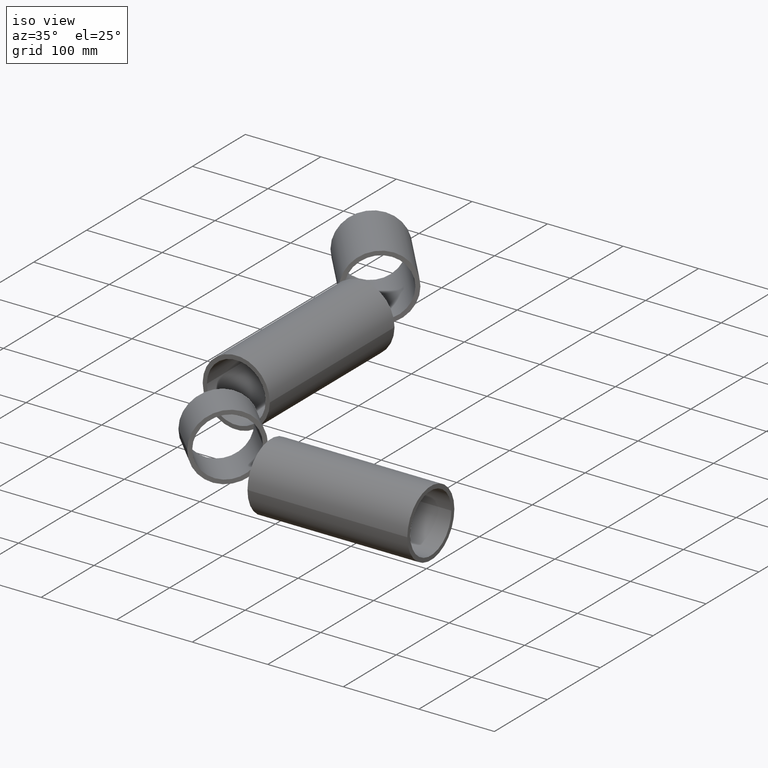
[diagram: clean part render]
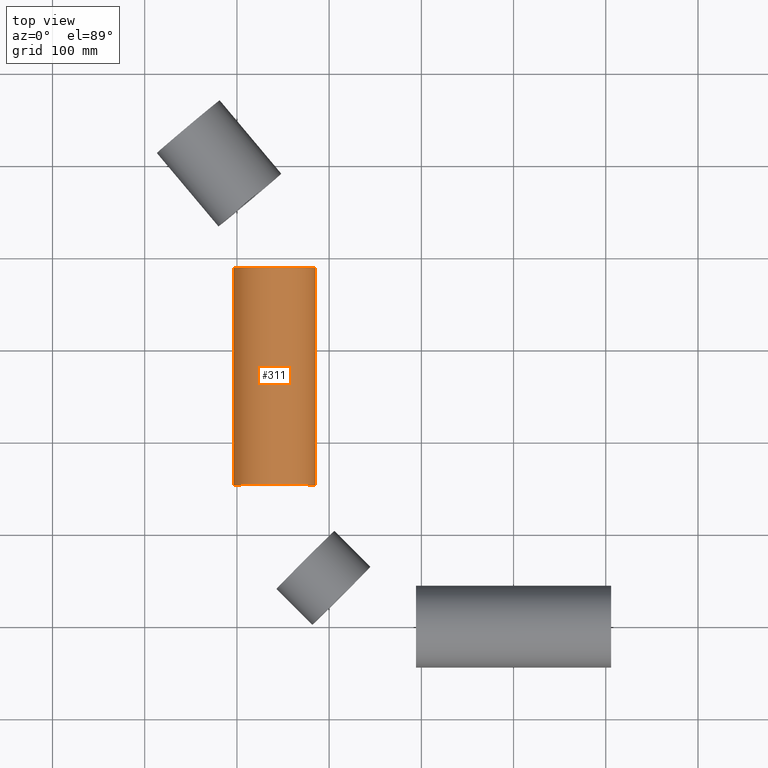
[diagram: tour spotlight — one face highlighted and labeled with its STEP entity id]
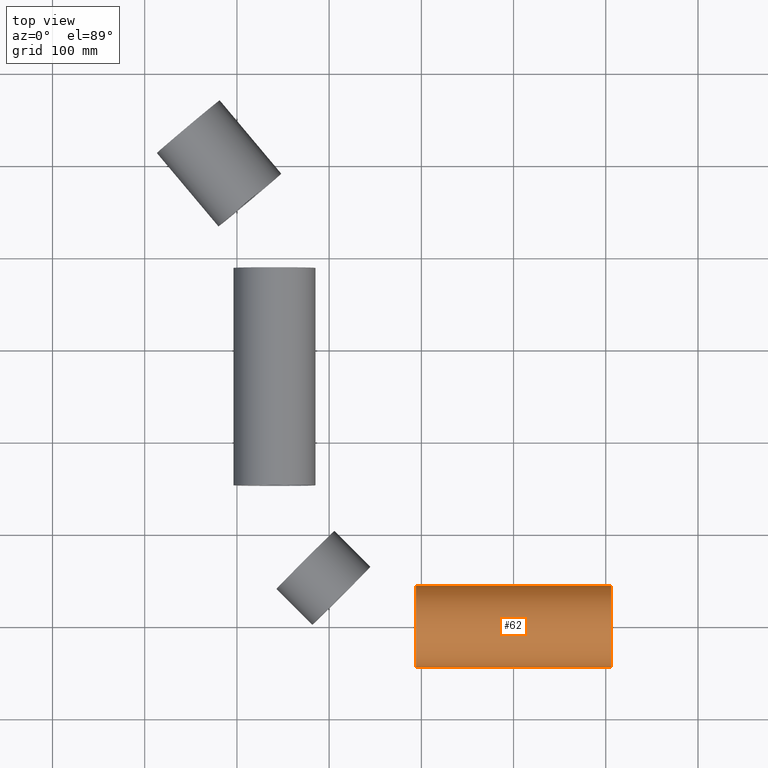
[diagram: tour spotlight — one face highlighted and labeled with its STEP entity id]
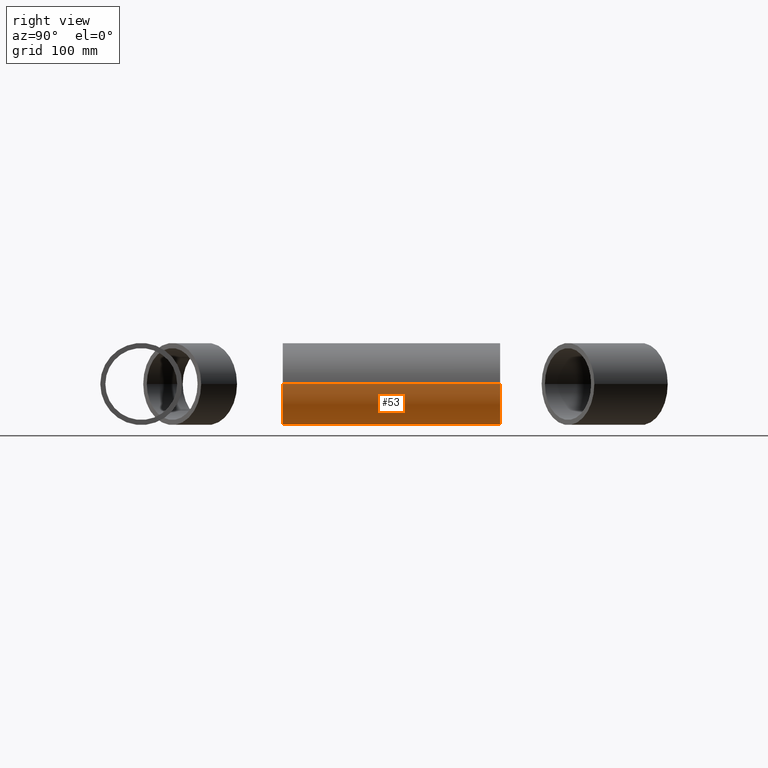
[diagram: tour spotlight — one face highlighted and labeled with its STEP entity id]
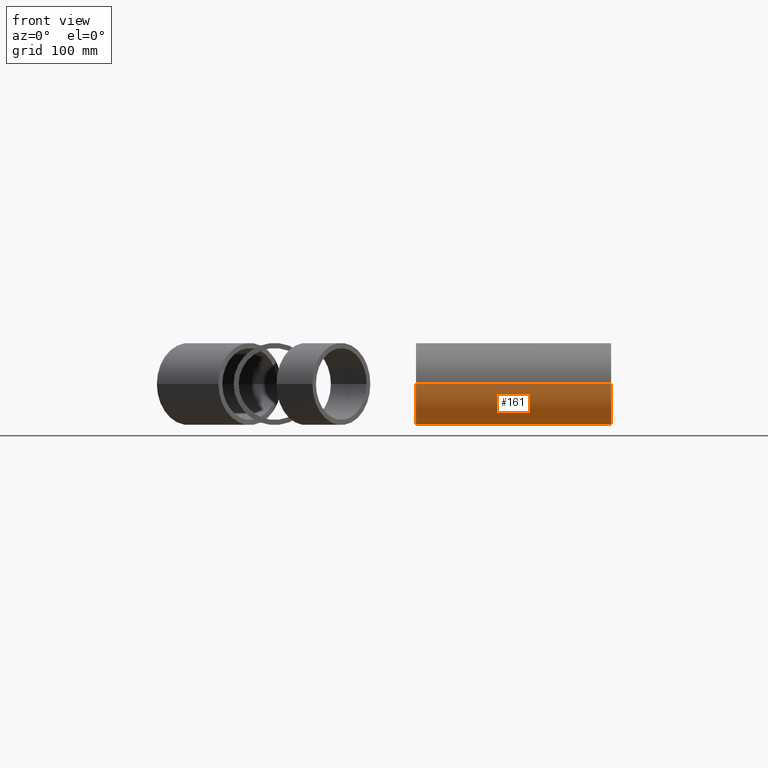
[diagram: tour spotlight — one face highlighted and labeled with its STEP entity id]
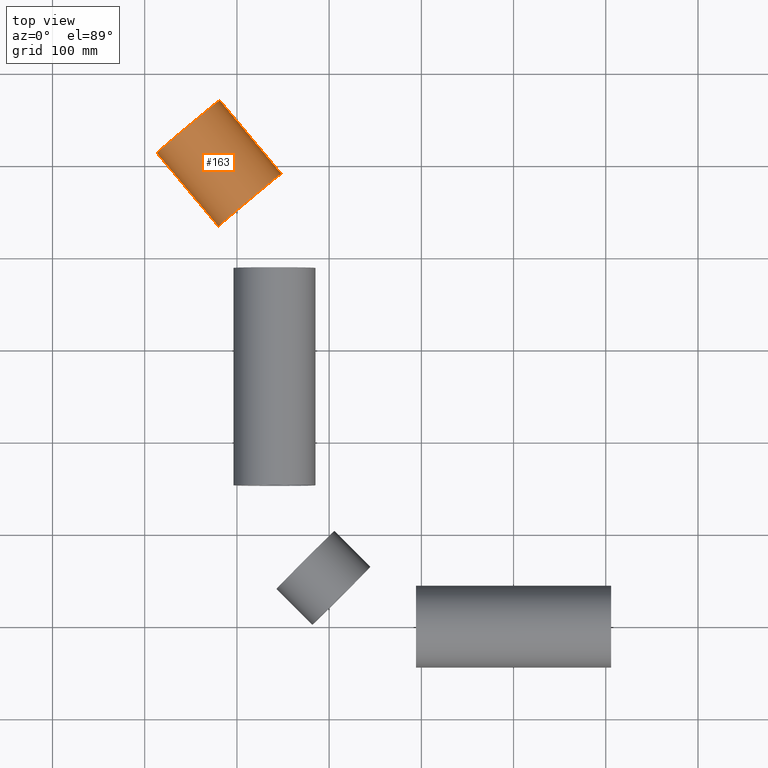
[diagram: tour spotlight — one face highlighted and labeled with its STEP entity id]
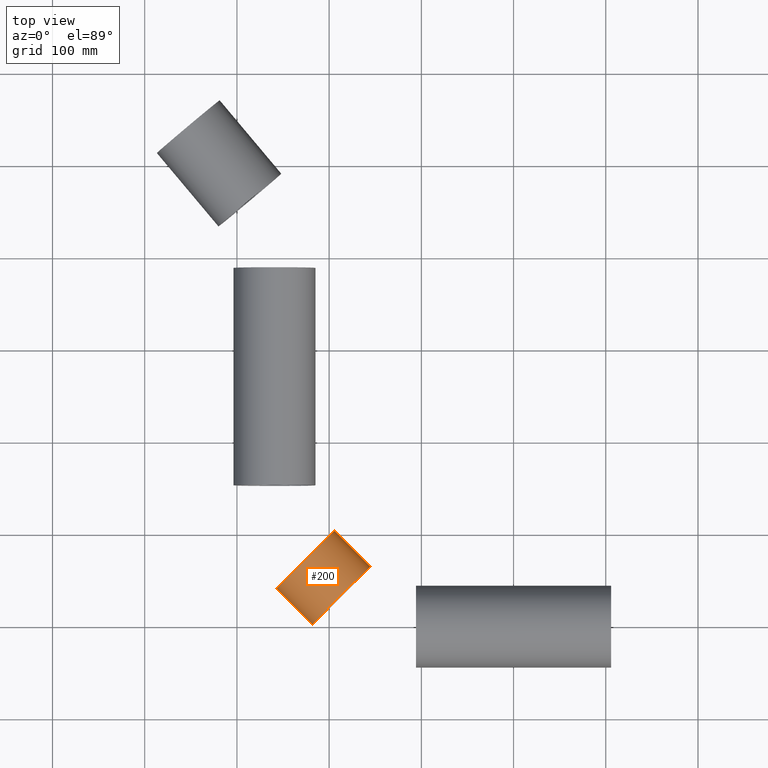
[diagram: tour spotlight — one face highlighted and labeled with its STEP entity id]
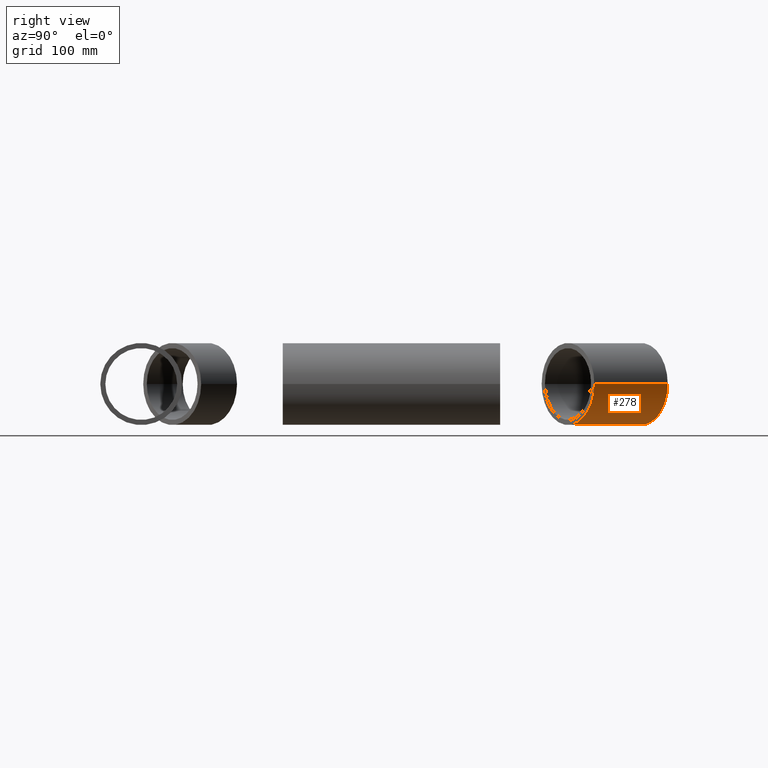
[diagram: tour spotlight — one face highlighted and labeled with its STEP entity id]
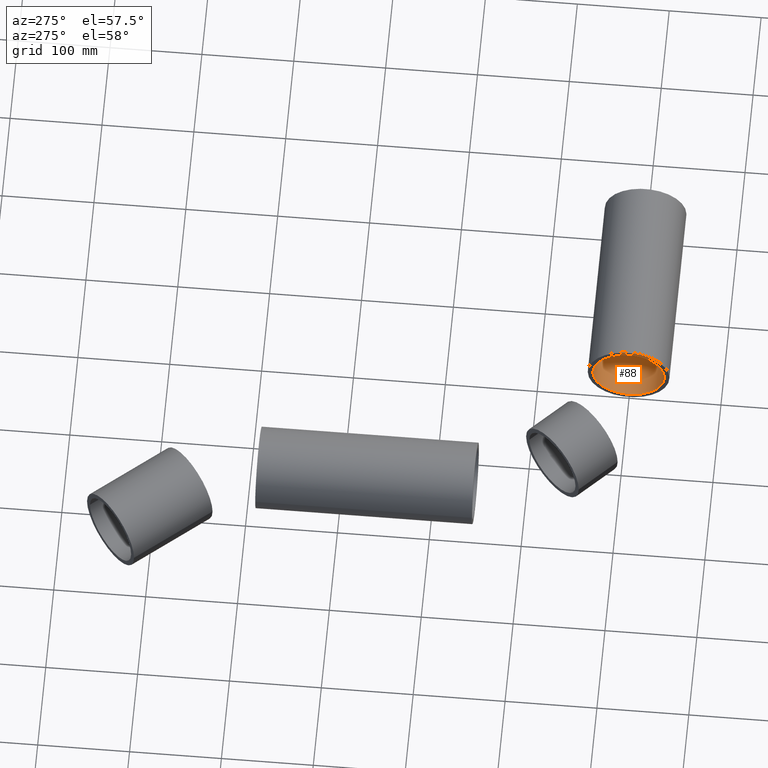
[diagram: tour spotlight — one face highlighted and labeled with its STEP entity id]
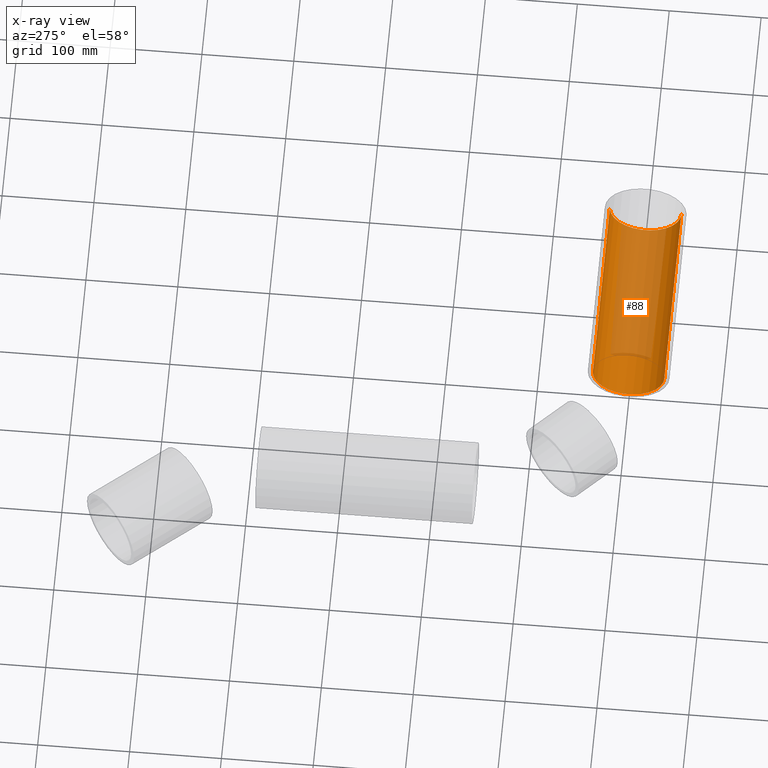
[diagram: x-ray of the same camera — body ghosted, this tour face saturated]
A machine part: a face-by-face anatomy tour. The part has 24 B-rep faces; the first image is the clean iso view, then the 8 largest visible faces are spotlighted one at a time (largest first), each with its STEP entity span.

Face 1 — top view, entity #311. In plain terms, the highlighted cylindrical surface (partial cylindrical patch) has radius 44.45 mm, axis along (-0, -1, -0).
Definition (entity closure, byte-faithful):
#37 = DIRECTION ( 'NONE',  ( -2.354570124668123057E-16, -1.000000000000000000, -0.000000000000000000 ) ) ;
#54 = VERTEX_POINT ( 'NONE', #654 ) ;
#63 = DIRECTION ( 'NONE',  ( -2.354570124668123057E-16, -1.000000000000000000, -0.000000000000000000 ) ) ;
#84 = LINE ( 'NONE', #538, #140 ) ;
#116 = EDGE_CURVE ( 'NONE', #54, #383, #84, .T. ) ;
#117 = CARTESIAN_POINT ( 'NONE',  ( -259.1954364826297024, 389.1500489170994115, 0.000000000000000000 ) ) ;
#124 = DIRECTION ( 'NONE',  ( 2.220446049250312588E-16, 1.000000000000000000, 0.000000000000000000 ) ) ;
#126 = EDGE_CURVE ( 'NONE', #383, #358, #327, .T. ) ;
#140 = VECTOR ( 'NONE', #37, 1000.000000000000000 ) ;
#192 = DIRECTION ( 'NONE',  ( -1.000000000000000000, 0.000000000000000000, 0.000000000000000000 ) ) ;
#202 = CARTESIAN_POINT ( 'NONE',  ( -214.7454364826296853, 389.1500489170994115, 0.000000000000000000 ) ) ;
#207 = DIRECTION ( 'NONE',  ( -2.354570124668123057E-16, -1.000000000000000000, -0.000000000000000000 ) ) ;
#268 = DIRECTION ( 'NONE',  ( -1.000000000000000000, 0.000000000000000000, 0.000000000000000000 ) ) ;
#291 = DIRECTION ( 'NONE',  ( 1.000000000000000000, 0.000000000000000000, 0.000000000000000000 ) ) ;
#311 = ADVANCED_FACE ( 'NONE', ( #353 ), #468, .T. ) ;
#316 = CARTESIAN_POINT ( 'NONE',  ( -259.1954364826297592, 153.3908729652592058, 0.000000000000000000 ) ) ;
#317 = LINE ( 'NONE', #640, #506 ) ;
#327 = CIRCLE ( 'NONE', #423, 44.45000000000004547 ) ;
#348 = EDGE_CURVE ( 'NONE', #395, #358, #317, .T. ) ;
#353 = FACE_OUTER_BOUND ( 'NONE', #514, .T. ) ;
#358 = VERTEX_POINT ( 'NONE', #366 ) ;
#366 = CARTESIAN_POINT ( 'NONE',  ( -214.7454364826297422, 153.3908729652592058, 0.000000000000000000 ) ) ;
#383 = VERTEX_POINT ( 'NONE', #530 ) ;
#395 = VERTEX_POINT ( 'NONE', #202 ) ;
#423 = AXIS2_PLACEMENT_3D ( 'NONE', #316, #541, #268 ) ;
#468 = CYLINDRICAL_SURFACE ( 'NONE', #519, 44.45000000000001705 ) ;
#506 = VECTOR ( 'NONE', #207, 1000.000000000000000 ) ;
#514 = EDGE_LOOP ( 'NONE', ( #622, #735, #625, #674 ) ) ;
#519 = AXIS2_PLACEMENT_3D ( 'NONE', #117, #63, #291 ) ;
#530 = CARTESIAN_POINT ( 'NONE',  ( -303.6454364826297478, 153.3908729652592058, 5.443555022209990431E-15 ) ) ;
#538 = CARTESIAN_POINT ( 'NONE',  ( -303.6454364826297478, 389.1500489170994115, 5.443555022209986486E-15 ) ) ;
#541 = DIRECTION ( 'NONE',  ( 2.220446049250312588E-16, 1.000000000000000000, 0.000000000000000000 ) ) ;
#590 = AXIS2_PLACEMENT_3D ( 'NONE', #641, #124, #192 ) ;
#612 = CIRCLE ( 'NONE', #590, 44.45000000000004547 ) ;
#622 = ORIENTED_EDGE ( 'NONE', *, *, #652, .F. ) ;
#625 = ORIENTED_EDGE ( 'NONE', *, *, #126, .T. ) ;
#640 = CARTESIAN_POINT ( 'NONE',  ( -214.7454364826296853, 389.1500489170994115, 0.000000000000000000 ) ) ;
#641 = CARTESIAN_POINT ( 'NONE',  ( -259.1954364826297024, 389.1500489170994115, 0.000000000000000000 ) ) ;
#652 = EDGE_CURVE ( 'NONE', #54, #395, #612, .T. ) ;
#654 = CARTESIAN_POINT ( 'NONE',  ( -303.6454364826297478, 389.1500489170994115, 5.443555022209982542E-15 ) ) ;
#674 = ORIENTED_EDGE ( 'NONE', *, *, #348, .F. ) ;
#735 = ORIENTED_EDGE ( 'NONE', *, *, #116, .T. ) ;

Face 2 — top view, entity #62. In plain terms, the highlighted cylindrical surface (partial cylindrical patch) has radius 44.45 mm, axis along (1, 0, -0).
Definition (entity closure, byte-faithful):
#9 = EDGE_CURVE ( 'NONE', #110, #227, #411, .T. ) ;
#42 = DIRECTION ( 'NONE',  ( 1.000000000000000000, 1.224646799147352961E-16, -0.000000000000000000 ) ) ;
#50 = DIRECTION ( 'NONE',  ( -1.000000000000000000, -1.110223024625156294E-16, 0.000000000000000000 ) ) ;
#62 = ADVANCED_FACE ( 'NONE', ( #420 ), #704, .T. ) ;
#69 = VECTOR ( 'NONE', #151, 1000.000000000000000 ) ;
#76 = CARTESIAN_POINT ( 'NONE',  ( -105.8045635173704966, -44.45000000000003126, 5.443555022209987275E-15 ) ) ;
#91 = CARTESIAN_POINT ( 'NONE',  ( -105.8045635173704966, -1.203685620153159673E-14, 0.000000000000000000 ) ) ;
#109 = EDGE_CURVE ( 'NONE', #286, #606, #587, .T. ) ;
#110 = VERTEX_POINT ( 'NONE', #650 ) ;
#125 = ORIENTED_EDGE ( 'NONE', *, *, #109, .F. ) ;
#146 = DIRECTION ( 'NONE',  ( 1.000000000000000000, 1.224646799147352961E-16, -0.000000000000000000 ) ) ;
#151 = DIRECTION ( 'NONE',  ( 1.000000000000000000, 1.224646799147352961E-16, -0.000000000000000000 ) ) ;
#154 = AXIS2_PLACEMENT_3D ( 'NONE', #614, #50, #608 ) ;
#164 = AXIS2_PLACEMENT_3D ( 'NONE', #91, #146, #486 ) ;
#216 = ORIENTED_EDGE ( 'NONE', *, *, #440, .F. ) ;
#227 = VERTEX_POINT ( 'NONE', #664 ) ;
#286 = VERTEX_POINT ( 'NONE', #457 ) ;
#379 = CARTESIAN_POINT ( 'NONE',  ( -105.8045635173704966, -1.203685620153159673E-14, 0.000000000000000000 ) ) ;
#396 = EDGE_LOOP ( 'NONE', ( #216, #510, #660, #125 ) ) ;
#411 = LINE ( 'NONE', #76, #69 ) ;
#420 = FACE_OUTER_BOUND ( 'NONE', #396, .T. ) ;
#440 = EDGE_CURVE ( 'NONE', #110, #286, #472, .T. ) ;
#450 = CIRCLE ( 'NONE', #154, 44.45000000000002416 ) ;
#451 = EDGE_CURVE ( 'NONE', #227, #606, #450, .T. ) ;
#457 = CARTESIAN_POINT ( 'NONE',  ( -105.8045635173704966, 44.45000000000000284, 0.000000000000000000 ) ) ;
#472 = CIRCLE ( 'NONE', #598, 44.45000000000002416 ) ;
#486 = DIRECTION ( 'NONE',  ( 0.000000000000000000, 1.000000000000000000, 0.000000000000000000 ) ) ;
#496 = VECTOR ( 'NONE', #42, 1000.000000000000000 ) ;
#510 = ORIENTED_EDGE ( 'NONE', *, *, #9, .T. ) ;
#513 = DIRECTION ( 'NONE',  ( 0.000000000000000000, -1.000000000000000000, 0.000000000000000000 ) ) ;
#523 = CARTESIAN_POINT ( 'NONE',  ( 105.8045635173699992, 44.45000000000002416, 0.000000000000000000 ) ) ;
#546 = CARTESIAN_POINT ( 'NONE',  ( -105.8045635173704966, 44.45000000000000284, 0.000000000000000000 ) ) ;
#587 = LINE ( 'NONE', #546, #496 ) ;
#598 = AXIS2_PLACEMENT_3D ( 'NONE', #379, #679, #513 ) ;
#606 = VERTEX_POINT ( 'NONE', #523 ) ;
#608 = DIRECTION ( 'NONE',  ( 0.000000000000000000, -1.000000000000000000, 0.000000000000000000 ) ) ;
#614 = CARTESIAN_POINT ( 'NONE',  ( 105.8045635173699992, 1.387778780781445676E-14, 0.000000000000000000 ) ) ;
#650 = CARTESIAN_POINT ( 'NONE',  ( -105.8045635173704966, -44.45000000000002416, 5.443555022209988853E-15 ) ) ;
#660 = ORIENTED_EDGE ( 'NONE', *, *, #451, .T. ) ;
#664 = CARTESIAN_POINT ( 'NONE',  ( 105.8045635173699992, -44.45000000000000284, 5.443555022209987275E-15 ) ) ;
#679 = DIRECTION ( 'NONE',  ( -1.000000000000000000, -1.110223024625156294E-16, 0.000000000000000000 ) ) ;
#704 = CYLINDRICAL_SURFACE ( 'NONE', #164, 44.45000000000001705 ) ;

Face 3 — right view, entity #53. In plain terms, the highlighted cylindrical surface (partial cylindrical patch) has radius 44.45 mm, axis along (-0, -1, -0).
Definition (entity closure, byte-faithful):
#6 = DIRECTION ( 'NONE',  ( -1.000000000000000000, 0.000000000000000000, 0.000000000000000000 ) ) ;
#12 = CIRCLE ( 'NONE', #93, 44.45000000000004547 ) ;
#37 = DIRECTION ( 'NONE',  ( -2.354570124668123057E-16, -1.000000000000000000, -0.000000000000000000 ) ) ;
#53 = ADVANCED_FACE ( 'NONE', ( #305 ), #252, .T. ) ;
#54 = VERTEX_POINT ( 'NONE', #654 ) ;
#61 = ORIENTED_EDGE ( 'NONE', *, *, #348, .T. ) ;
#66 = ORIENTED_EDGE ( 'NONE', *, *, #314, .F. ) ;
#75 = CARTESIAN_POINT ( 'NONE',  ( -259.1954364826297592, 153.3908729652592058, 0.000000000000000000 ) ) ;
#84 = LINE ( 'NONE', #538, #140 ) ;
#93 = AXIS2_PLACEMENT_3D ( 'NONE', #694, #515, #6 ) ;
#116 = EDGE_CURVE ( 'NONE', #54, #383, #84, .T. ) ;
#136 = DIRECTION ( 'NONE',  ( -2.354570124668123057E-16, -1.000000000000000000, -0.000000000000000000 ) ) ;
#140 = VECTOR ( 'NONE', #37, 1000.000000000000000 ) ;
#160 = ORIENTED_EDGE ( 'NONE', *, *, #712, .T. ) ;
#187 = DIRECTION ( 'NONE',  ( 2.220446049250312588E-16, 1.000000000000000000, 0.000000000000000000 ) ) ;
#202 = CARTESIAN_POINT ( 'NONE',  ( -214.7454364826296853, 389.1500489170994115, 0.000000000000000000 ) ) ;
#206 = DIRECTION ( 'NONE',  ( 1.000000000000000000, 0.000000000000000000, 0.000000000000000000 ) ) ;
#207 = DIRECTION ( 'NONE',  ( -2.354570124668123057E-16, -1.000000000000000000, -0.000000000000000000 ) ) ;
#252 = CYLINDRICAL_SURFACE ( 'NONE', #555, 44.45000000000001705 ) ;
#305 = FACE_OUTER_BOUND ( 'NONE', #683, .T. ) ;
#314 = EDGE_CURVE ( 'NONE', #395, #54, #12, .T. ) ;
#317 = LINE ( 'NONE', #640, #506 ) ;
#331 = ORIENTED_EDGE ( 'NONE', *, *, #116, .F. ) ;
#348 = EDGE_CURVE ( 'NONE', #395, #358, #317, .T. ) ;
#358 = VERTEX_POINT ( 'NONE', #366 ) ;
#366 = CARTESIAN_POINT ( 'NONE',  ( -214.7454364826297422, 153.3908729652592058, 0.000000000000000000 ) ) ;
#383 = VERTEX_POINT ( 'NONE', #530 ) ;
#395 = VERTEX_POINT ( 'NONE', #202 ) ;
#410 = DIRECTION ( 'NONE',  ( -1.000000000000000000, 0.000000000000000000, 0.000000000000000000 ) ) ;
#462 = CIRCLE ( 'NONE', #710, 44.45000000000004547 ) ;
#475 = CARTESIAN_POINT ( 'NONE',  ( -259.1954364826297024, 389.1500489170994115, 0.000000000000000000 ) ) ;
#506 = VECTOR ( 'NONE', #207, 1000.000000000000000 ) ;
#515 = DIRECTION ( 'NONE',  ( 2.220446049250312588E-16, 1.000000000000000000, 0.000000000000000000 ) ) ;
#530 = CARTESIAN_POINT ( 'NONE',  ( -303.6454364826297478, 153.3908729652592058, 5.443555022209990431E-15 ) ) ;
#538 = CARTESIAN_POINT ( 'NONE',  ( -303.6454364826297478, 389.1500489170994115, 5.443555022209986486E-15 ) ) ;
#555 = AXIS2_PLACEMENT_3D ( 'NONE', #475, #136, #206 ) ;
#640 = CARTESIAN_POINT ( 'NONE',  ( -214.7454364826296853, 389.1500489170994115, 0.000000000000000000 ) ) ;
#654 = CARTESIAN_POINT ( 'NONE',  ( -303.6454364826297478, 389.1500489170994115, 5.443555022209982542E-15 ) ) ;
#683 = EDGE_LOOP ( 'NONE', ( #331, #66, #61, #160 ) ) ;
#694 = CARTESIAN_POINT ( 'NONE',  ( -259.1954364826297024, 389.1500489170994115, 0.000000000000000000 ) ) ;
#710 = AXIS2_PLACEMENT_3D ( 'NONE', #75, #187, #410 ) ;
#712 = EDGE_CURVE ( 'NONE', #358, #383, #462, .T. ) ;

Face 4 — front view, entity #161. In plain terms, the highlighted cylindrical surface (partial cylindrical patch) has radius 44.45 mm, axis along (1, 0, -0).
Definition (entity closure, byte-faithful):
#3 = EDGE_LOOP ( 'NONE', ( #416, #512, #362, #326 ) ) ;
#9 = EDGE_CURVE ( 'NONE', #110, #227, #411, .T. ) ;
#42 = DIRECTION ( 'NONE',  ( 1.000000000000000000, 1.224646799147352961E-16, -0.000000000000000000 ) ) ;
#49 = DIRECTION ( 'NONE',  ( 0.000000000000000000, 1.000000000000000000, 0.000000000000000000 ) ) ;
#69 = VECTOR ( 'NONE', #151, 1000.000000000000000 ) ;
#76 = CARTESIAN_POINT ( 'NONE',  ( -105.8045635173704966, -44.45000000000003126, 5.443555022209987275E-15 ) ) ;
#82 = DIRECTION ( 'NONE',  ( -1.000000000000000000, -1.110223024625156294E-16, 0.000000000000000000 ) ) ;
#109 = EDGE_CURVE ( 'NONE', #286, #606, #587, .T. ) ;
#110 = VERTEX_POINT ( 'NONE', #650 ) ;
#115 = CIRCLE ( 'NONE', #532, 44.45000000000002416 ) ;
#151 = DIRECTION ( 'NONE',  ( 1.000000000000000000, 1.224646799147352961E-16, -0.000000000000000000 ) ) ;
#161 = ADVANCED_FACE ( 'NONE', ( #370 ), #593, .T. ) ;
#219 = CIRCLE ( 'NONE', #400, 44.45000000000002416 ) ;
#227 = VERTEX_POINT ( 'NONE', #664 ) ;
#259 = CARTESIAN_POINT ( 'NONE',  ( -105.8045635173704966, -1.203685620153159673E-14, 0.000000000000000000 ) ) ;
#260 = DIRECTION ( 'NONE',  ( 0.000000000000000000, -1.000000000000000000, 0.000000000000000000 ) ) ;
#286 = VERTEX_POINT ( 'NONE', #457 ) ;
#308 = DIRECTION ( 'NONE',  ( 0.000000000000000000, -1.000000000000000000, 0.000000000000000000 ) ) ;
#326 = ORIENTED_EDGE ( 'NONE', *, *, #586, .T. ) ;
#346 = EDGE_CURVE ( 'NONE', #286, #110, #219, .T. ) ;
#362 = ORIENTED_EDGE ( 'NONE', *, *, #109, .T. ) ;
#370 = FACE_OUTER_BOUND ( 'NONE', #3, .T. ) ;
#374 = DIRECTION ( 'NONE',  ( 1.000000000000000000, 1.224646799147352961E-16, -0.000000000000000000 ) ) ;
#375 = CARTESIAN_POINT ( 'NONE',  ( -105.8045635173704966, -1.203685620153159673E-14, 0.000000000000000000 ) ) ;
#400 = AXIS2_PLACEMENT_3D ( 'NONE', #375, #539, #260 ) ;
#411 = LINE ( 'NONE', #76, #69 ) ;
#416 = ORIENTED_EDGE ( 'NONE', *, *, #9, .F. ) ;
#457 = CARTESIAN_POINT ( 'NONE',  ( -105.8045635173704966, 44.45000000000000284, 0.000000000000000000 ) ) ;
#477 = CARTESIAN_POINT ( 'NONE',  ( 105.8045635173699992, 1.387778780781445676E-14, 0.000000000000000000 ) ) ;
#496 = VECTOR ( 'NONE', #42, 1000.000000000000000 ) ;
#512 = ORIENTED_EDGE ( 'NONE', *, *, #346, .F. ) ;
#523 = CARTESIAN_POINT ( 'NONE',  ( 105.8045635173699992, 44.45000000000002416, 0.000000000000000000 ) ) ;
#532 = AXIS2_PLACEMENT_3D ( 'NONE', #477, #82, #308 ) ;
#539 = DIRECTION ( 'NONE',  ( -1.000000000000000000, -1.110223024625156294E-16, 0.000000000000000000 ) ) ;
#546 = CARTESIAN_POINT ( 'NONE',  ( -105.8045635173704966, 44.45000000000000284, 0.000000000000000000 ) ) ;
#586 = EDGE_CURVE ( 'NONE', #606, #227, #115, .T. ) ;
#587 = LINE ( 'NONE', #546, #496 ) ;
#593 = CYLINDRICAL_SURFACE ( 'NONE', #656, 44.45000000000001705 ) ;
#606 = VERTEX_POINT ( 'NONE', #523 ) ;
#650 = CARTESIAN_POINT ( 'NONE',  ( -105.8045635173704966, -44.45000000000002416, 5.443555022209988853E-15 ) ) ;
#656 = AXIS2_PLACEMENT_3D ( 'NONE', #259, #374, #49 ) ;
#664 = CARTESIAN_POINT ( 'NONE',  ( 105.8045635173699992, -44.45000000000000284, 5.443555022209987275E-15 ) ) ;

Face 5 — top view, entity #163. In plain terms, the highlighted cylindrical surface (partial cylindrical patch) has radius 44.45 mm, axis along (0.6428, -0.766, -0).
Definition (entity closure, byte-faithful):
#7 = EDGE_CURVE ( 'NONE', #80, #696, #73, .T. ) ;
#13 = CIRCLE ( 'NONE', #228, 44.45000000000005258 ) ;
#14 = EDGE_LOOP ( 'NONE', ( #445, #231, #458, #669 ) ) ;
#51 = VERTEX_POINT ( 'NONE', #596 ) ;
#73 = LINE ( 'NONE', #244, #217 ) ;
#80 = VERTEX_POINT ( 'NONE', #86 ) ;
#86 = CARTESIAN_POINT ( 'NONE',  ( -318.7168848891259927, 570.9114648193771018, 0.000000000000000000 ) ) ;
#118 = DIRECTION ( 'NONE',  ( 0.7660444431189770143, 0.6427876096865405842, 0.000000000000000000 ) ) ;
#123 = DIRECTION ( 'NONE',  ( 0.6427876096865413613, -0.7660444431189764591, -0.000000000000000000 ) ) ;
#142 = VECTOR ( 'NONE', #597, 1000.000000000000114 ) ;
#163 = ADVANCED_FACE ( 'NONE', ( #665 ), #613, .T. ) ;
#184 = CARTESIAN_POINT ( 'NONE',  ( -320.0340232421454516, 434.1773209756414076, 5.443555022209987275E-15 ) ) ;
#217 = VECTOR ( 'NONE', #467, 1000.000000000000114 ) ;
#224 = CARTESIAN_POINT ( 'NONE',  ( -285.9833477455069328, 462.7492302262081694, 0.000000000000000000 ) ) ;
#228 = AXIS2_PLACEMENT_3D ( 'NONE', #224, #550, #717 ) ;
#231 = ORIENTED_EDGE ( 'NONE', *, *, #504, .T. ) ;
#237 = CARTESIAN_POINT ( 'NONE',  ( -352.7675603857644546, 542.3395555688102831, 0.000000000000000000 ) ) ;
#244 = CARTESIAN_POINT ( 'NONE',  ( -318.7168848891259358, 570.9114648193771018, 0.000000000000000000 ) ) ;
#306 = DIRECTION ( 'NONE',  ( -0.6427876096865413613, 0.7660444431189764591, 0.000000000000000000 ) ) ;
#318 = EDGE_CURVE ( 'NONE', #51, #80, #330, .T. ) ;
#330 = CIRCLE ( 'NONE', #543, 44.45000000000001705 ) ;
#339 = AXIS2_PLACEMENT_3D ( 'NONE', #412, #123, #118 ) ;
#382 = CARTESIAN_POINT ( 'NONE',  ( -386.8182358824029734, 513.7676463182435782, 5.443555022209987275E-15 ) ) ;
#412 = CARTESIAN_POINT ( 'NONE',  ( -352.7675603857644546, 542.3395555688102831, 0.000000000000000000 ) ) ;
#445 = ORIENTED_EDGE ( 'NONE', *, *, #318, .F. ) ;
#458 = ORIENTED_EDGE ( 'NONE', *, *, #524, .T. ) ;
#467 = DIRECTION ( 'NONE',  ( 0.6427876096865412503, -0.7660444431189763481, -0.000000000000000000 ) ) ;
#471 = DIRECTION ( 'NONE',  ( -0.7660444431189770143, -0.6427876096865405842, 0.000000000000000000 ) ) ;
#504 = EDGE_CURVE ( 'NONE', #51, #615, #729, .T. ) ;
#524 = EDGE_CURVE ( 'NONE', #615, #696, #13, .T. ) ;
#543 = AXIS2_PLACEMENT_3D ( 'NONE', #237, #306, #471 ) ;
#550 = DIRECTION ( 'NONE',  ( -0.6427876096865413613, 0.7660444431189764591, 0.000000000000000000 ) ) ;
#596 = CARTESIAN_POINT ( 'NONE',  ( -386.8182358824029166, 513.7676463182435782, 5.443555022209987275E-15 ) ) ;
#597 = DIRECTION ( 'NONE',  ( 0.6427876096865412503, -0.7660444431189763481, -0.000000000000000000 ) ) ;
#613 = CYLINDRICAL_SURFACE ( 'NONE', #339, 44.45000000000001705 ) ;
#615 = VERTEX_POINT ( 'NONE', #184 ) ;
#631 = CARTESIAN_POINT ( 'NONE',  ( -251.9326722488683856, 491.3211394767749880, 0.000000000000000000 ) ) ;
#665 = FACE_OUTER_BOUND ( 'NONE', #14, .T. ) ;
#669 = ORIENTED_EDGE ( 'NONE', *, *, #7, .F. ) ;
#696 = VERTEX_POINT ( 'NONE', #631 ) ;
#717 = DIRECTION ( 'NONE',  ( -0.7660444431189763481, -0.6427876096865413613, 0.000000000000000000 ) ) ;
#729 = LINE ( 'NONE', #382, #142 ) ;

Face 6 — top view, entity #200. In plain terms, the highlighted cylindrical surface (partial cylindrical patch) has radius 44.45 mm, axis along (-0.7071, 0.7071, -0).
Definition (entity closure, byte-faithful):
#5 = EDGE_LOOP ( 'NONE', ( #627, #352, #290, #727 ) ) ;
#33 = DIRECTION ( 'NONE',  ( 0.7071067811865520136, -0.7071067811865432429, 0.000000000000000000 ) ) ;
#38 = AXIS2_PLACEMENT_3D ( 'NONE', #186, #409, #636 ) ;
#40 = CIRCLE ( 'NONE', #724, 44.45000000000003837 ) ;
#72 = VECTOR ( 'NONE', #361, 1000.000000000000000 ) ;
#77 = DIRECTION ( 'NONE',  ( 0.7071067811865520136, -0.7071067811865432429, 0.000000000000000000 ) ) ;
#87 = CARTESIAN_POINT ( 'NONE',  ( -186.7682899632294209, 33.53627355413972566, 0.000000000000000000 ) ) ;
#90 = DIRECTION ( 'NONE',  ( 0.7071067811865431318, 0.7071067811865519026, 0.000000000000000000 ) ) ;
#92 = DIRECTION ( 'NONE',  ( -0.7071067811865519026, 0.7071067811865431318, -0.000000000000000000 ) ) ;
#166 = AXIS2_PLACEMENT_3D ( 'NONE', #697, #77, #90 ) ;
#175 = VERTEX_POINT ( 'NONE', #461 ) ;
#186 = CARTESIAN_POINT ( 'NONE',  ( -186.7682899632294209, 33.53627355413972566, 0.000000000000000000 ) ) ;
#200 = ADVANCED_FACE ( 'NONE', ( #295 ), #691, .T. ) ;
#246 = CARTESIAN_POINT ( 'NONE',  ( -155.3373935394875502, 64.96716997788196579, 5.443555022209987275E-15 ) ) ;
#247 = VERTEX_POINT ( 'NONE', #621 ) ;
#248 = DIRECTION ( 'NONE',  ( 0.7071067811865429098, 0.7071067811865520136, 0.000000000000000000 ) ) ;
#290 = ORIENTED_EDGE ( 'NONE', *, *, #338, .T. ) ;
#295 = FACE_OUTER_BOUND ( 'NONE', #5, .T. ) ;
#325 = EDGE_CURVE ( 'NONE', #175, #401, #40, .T. ) ;
#334 = LINE ( 'NONE', #501, #564 ) ;
#338 = EDGE_CURVE ( 'NONE', #247, #562, #483, .T. ) ;
#352 = ORIENTED_EDGE ( 'NONE', *, *, #623, .T. ) ;
#361 = DIRECTION ( 'NONE',  ( -0.7071067811865519026, 0.7071067811865431318, -0.000000000000000000 ) ) ;
#401 = VERTEX_POINT ( 'NONE', #642 ) ;
#409 = DIRECTION ( 'NONE',  ( -0.7071067811865519026, 0.7071067811865431318, -0.000000000000000000 ) ) ;
#459 = EDGE_CURVE ( 'NONE', #401, #562, #334, .T. ) ;
#461 = CARTESIAN_POINT ( 'NONE',  ( -155.3373935394875502, 64.96716997788196579, 5.443555022209987275E-15 ) ) ;
#483 = CIRCLE ( 'NONE', #166, 44.45000000000002416 ) ;
#499 = CARTESIAN_POINT ( 'NONE',  ( -257.0900593522316058, 40.99625009565733080, 0.000000000000000000 ) ) ;
#501 = CARTESIAN_POINT ( 'NONE',  ( -218.1991863869712915, 2.105377130397482865, 0.000000000000000000 ) ) ;
#562 = VERTEX_POINT ( 'NONE', #499 ) ;
#564 = VECTOR ( 'NONE', #92, 1000.000000000000000 ) ;
#579 = LINE ( 'NONE', #246, #72 ) ;
#621 = CARTESIAN_POINT ( 'NONE',  ( -194.2282665047478929, 103.8580429431418253, 5.443555022209987275E-15 ) ) ;
#623 = EDGE_CURVE ( 'NONE', #175, #247, #579, .T. ) ;
#627 = ORIENTED_EDGE ( 'NONE', *, *, #325, .F. ) ;
#636 = DIRECTION ( 'NONE',  ( -0.7071067811865432429, -0.7071067811865519026, 0.000000000000000000 ) ) ;
#642 = CARTESIAN_POINT ( 'NONE',  ( -218.1991863869712915, 2.105377130397482865, 0.000000000000000000 ) ) ;
#691 = CYLINDRICAL_SURFACE ( 'NONE', #38, 44.45000000000001705 ) ;
#697 = CARTESIAN_POINT ( 'NONE',  ( -225.6591629284897635, 72.42714651939957093, 0.000000000000000000 ) ) ;
#724 = AXIS2_PLACEMENT_3D ( 'NONE', #87, #33, #248 ) ;
#727 = ORIENTED_EDGE ( 'NONE', *, *, #459, .F. ) ;

Face 7 — right view, entity #278. In plain terms, the highlighted cylindrical surface (partial cylindrical patch) has radius 44.45 mm, axis along (0.6428, -0.766, -0).
Definition (entity closure, byte-faithful):
#7 = EDGE_CURVE ( 'NONE', #80, #696, #73, .T. ) ;
#25 = CARTESIAN_POINT ( 'NONE',  ( -352.7675603857644546, 542.3395555688102831, 0.000000000000000000 ) ) ;
#34 = EDGE_CURVE ( 'NONE', #80, #51, #367, .T. ) ;
#51 = VERTEX_POINT ( 'NONE', #596 ) ;
#73 = LINE ( 'NONE', #244, #217 ) ;
#80 = VERTEX_POINT ( 'NONE', #86 ) ;
#86 = CARTESIAN_POINT ( 'NONE',  ( -318.7168848891259927, 570.9114648193771018, 0.000000000000000000 ) ) ;
#127 = CARTESIAN_POINT ( 'NONE',  ( -352.7675603857644546, 542.3395555688102831, 0.000000000000000000 ) ) ;
#129 = CARTESIAN_POINT ( 'NONE',  ( -285.9833477455069328, 462.7492302262081694, 0.000000000000000000 ) ) ;
#142 = VECTOR ( 'NONE', #597, 1000.000000000000114 ) ;
#184 = CARTESIAN_POINT ( 'NONE',  ( -320.0340232421454516, 434.1773209756414076, 5.443555022209987275E-15 ) ) ;
#217 = VECTOR ( 'NONE', #467, 1000.000000000000114 ) ;
#232 = DIRECTION ( 'NONE',  ( 0.6427876096865413613, -0.7660444431189764591, -0.000000000000000000 ) ) ;
#244 = CARTESIAN_POINT ( 'NONE',  ( -318.7168848891259358, 570.9114648193771018, 0.000000000000000000 ) ) ;
#245 = CYLINDRICAL_SURFACE ( 'NONE', #670, 44.45000000000001705 ) ;
#278 = ADVANCED_FACE ( 'NONE', ( #626 ), #245, .T. ) ;
#349 = DIRECTION ( 'NONE',  ( 0.7660444431189770143, 0.6427876096865405842, 0.000000000000000000 ) ) ;
#367 = CIRCLE ( 'NONE', #413, 44.45000000000001705 ) ;
#382 = CARTESIAN_POINT ( 'NONE',  ( -386.8182358824029734, 513.7676463182435782, 5.443555022209987275E-15 ) ) ;
#413 = AXIS2_PLACEMENT_3D ( 'NONE', #25, #489, #481 ) ;
#460 = EDGE_LOOP ( 'NONE', ( #686, #730, #672, #567 ) ) ;
#467 = DIRECTION ( 'NONE',  ( 0.6427876096865412503, -0.7660444431189763481, -0.000000000000000000 ) ) ;
#481 = DIRECTION ( 'NONE',  ( -0.7660444431189770143, -0.6427876096865405842, 0.000000000000000000 ) ) ;
#489 = DIRECTION ( 'NONE',  ( -0.6427876096865413613, 0.7660444431189764591, 0.000000000000000000 ) ) ;
#504 = EDGE_CURVE ( 'NONE', #51, #615, #729, .T. ) ;
#567 = ORIENTED_EDGE ( 'NONE', *, *, #607, .T. ) ;
#570 = DIRECTION ( 'NONE',  ( -0.7660444431189763481, -0.6427876096865413613, 0.000000000000000000 ) ) ;
#596 = CARTESIAN_POINT ( 'NONE',  ( -386.8182358824029166, 513.7676463182435782, 5.443555022209987275E-15 ) ) ;
#597 = DIRECTION ( 'NONE',  ( 0.6427876096865412503, -0.7660444431189763481, -0.000000000000000000 ) ) ;
#607 = EDGE_CURVE ( 'NONE', #696, #615, #646, .T. ) ;
#611 = AXIS2_PLACEMENT_3D ( 'NONE', #129, #688, #570 ) ;
#615 = VERTEX_POINT ( 'NONE', #184 ) ;
#626 = FACE_OUTER_BOUND ( 'NONE', #460, .T. ) ;
#631 = CARTESIAN_POINT ( 'NONE',  ( -251.9326722488683856, 491.3211394767749880, 0.000000000000000000 ) ) ;
#646 = CIRCLE ( 'NONE', #611, 44.45000000000005258 ) ;
#670 = AXIS2_PLACEMENT_3D ( 'NONE', #127, #232, #349 ) ;
#672 = ORIENTED_EDGE ( 'NONE', *, *, #7, .T. ) ;
#686 = ORIENTED_EDGE ( 'NONE', *, *, #504, .F. ) ;
#688 = DIRECTION ( 'NONE',  ( -0.6427876096865413613, 0.7660444431189764591, 0.000000000000000000 ) ) ;
#696 = VERTEX_POINT ( 'NONE', #631 ) ;
#729 = LINE ( 'NONE', #382, #142 ) ;
#730 = ORIENTED_EDGE ( 'NONE', *, *, #34, .F. ) ;

Face 8 — auxiliary view, entity #88. An x-ray twin of the same camera follows (body ghosted, this face saturated) — the face is partly hidden behind the body. In plain terms, the highlighted cylindrical surface (edge-blend (fillet) strip) has radius 38.95 mm, axis along (1, 0, -0).
Definition (entity closure, byte-faithful):
#11 = CARTESIAN_POINT ( 'NONE',  ( 105.8045635173699992, -38.95000000000000995, 4.769999282678943960E-15 ) ) ;
#17 = VERTEX_POINT ( 'NONE', #715 ) ;
#48 = VECTOR ( 'NONE', #99, 1000.000000000000000 ) ;
#68 = DIRECTION ( 'NONE',  ( 0.000000000000000000, -1.000000000000000000, 0.000000000000000000 ) ) ;
#88 = ADVANCED_FACE ( 'NONE', ( #434 ), #707, .F. ) ;
#94 = AXIS2_PLACEMENT_3D ( 'NONE', #304, #134, #522 ) ;
#99 = DIRECTION ( 'NONE',  ( 1.000000000000000000, 1.224646799147352961E-16, -0.000000000000000000 ) ) ;
#101 = CARTESIAN_POINT ( 'NONE',  ( -105.8045635173704966, -38.95000000000003837, 4.769999282678943960E-15 ) ) ;
#102 = AXIS2_PLACEMENT_3D ( 'NONE', #350, #573, #68 ) ;
#106 = CIRCLE ( 'NONE', #94, 38.95000000000003126 ) ;
#134 = DIRECTION ( 'NONE',  ( -1.000000000000000000, -1.110223024625156294E-16, 0.000000000000000000 ) ) ;
#189 = EDGE_CURVE ( 'NONE', #195, #282, #531, .T. ) ;
#191 = CARTESIAN_POINT ( 'NONE',  ( -105.8045635173704966, 38.95000000000000995, 0.000000000000000000 ) ) ;
#195 = VERTEX_POINT ( 'NONE', #191 ) ;
#229 = ORIENTED_EDGE ( 'NONE', *, *, #243, .F. ) ;
#243 = EDGE_CURVE ( 'NONE', #195, #17, #391, .T. ) ;
#273 = VECTOR ( 'NONE', #581, 1000.000000000000000 ) ;
#282 = VERTEX_POINT ( 'NONE', #399 ) ;
#304 = CARTESIAN_POINT ( 'NONE',  ( 105.8045635173699992, 1.387778780781445676E-14, 0.000000000000000000 ) ) ;
#313 = DIRECTION ( 'NONE',  ( 1.000000000000000000, 1.224646799147352961E-16, -0.000000000000000000 ) ) ;
#321 = CARTESIAN_POINT ( 'NONE',  ( -105.8045635173704966, -1.203685620153159673E-14, 0.000000000000000000 ) ) ;
#350 = CARTESIAN_POINT ( 'NONE',  ( -105.8045635173704966, -1.203685620153159673E-14, 0.000000000000000000 ) ) ;
#384 = LINE ( 'NONE', #101, #48 ) ;
#391 = LINE ( 'NONE', #616, #273 ) ;
#399 = CARTESIAN_POINT ( 'NONE',  ( -105.8045635173704966, -38.95000000000003837, 4.769999282678945538E-15 ) ) ;
#428 = DIRECTION ( 'NONE',  ( 0.000000000000000000, 1.000000000000000000, 0.000000000000000000 ) ) ;
#434 = FACE_OUTER_BOUND ( 'NONE', #618, .T. ) ;
#442 = ORIENTED_EDGE ( 'NONE', *, *, #189, .T. ) ;
#470 = EDGE_CURVE ( 'NONE', #282, #619, #384, .T. ) ;
#522 = DIRECTION ( 'NONE',  ( 0.000000000000000000, -1.000000000000000000, 0.000000000000000000 ) ) ;
#531 = CIRCLE ( 'NONE', #102, 38.95000000000003126 ) ;
#573 = DIRECTION ( 'NONE',  ( -1.000000000000000000, -1.110223024625156294E-16, 0.000000000000000000 ) ) ;
#581 = DIRECTION ( 'NONE',  ( 1.000000000000000000, 1.224646799147352961E-16, -0.000000000000000000 ) ) ;
#604 = ORIENTED_EDGE ( 'NONE', *, *, #609, .F. ) ;
#609 = EDGE_CURVE ( 'NONE', #17, #619, #106, .T. ) ;
#616 = CARTESIAN_POINT ( 'NONE',  ( -105.8045635173704966, 38.95000000000000995, 0.000000000000000000 ) ) ;
#618 = EDGE_LOOP ( 'NONE', ( #442, #667, #604, #229 ) ) ;
#619 = VERTEX_POINT ( 'NONE', #11 ) ;
#667 = ORIENTED_EDGE ( 'NONE', *, *, #470, .T. ) ;
#668 = AXIS2_PLACEMENT_3D ( 'NONE', #321, #313, #428 ) ;
#707 = CYLINDRICAL_SURFACE ( 'NONE', #668, 38.95000000000002416 ) ;
#715 = CARTESIAN_POINT ( 'NONE',  ( 105.8045635173699992, 38.95000000000003837, 0.000000000000000000 ) ) ;